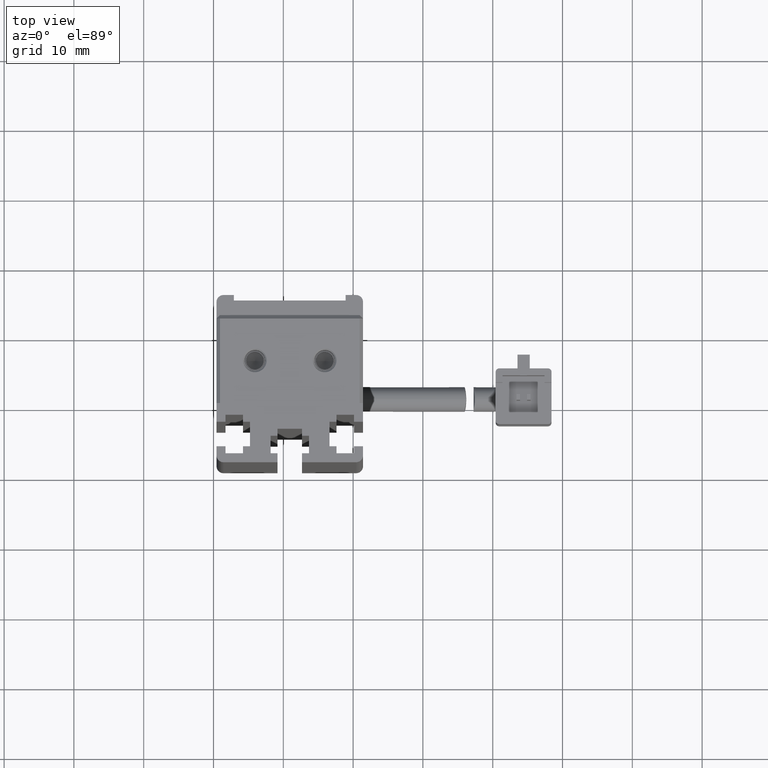
[diagram: clean part render]
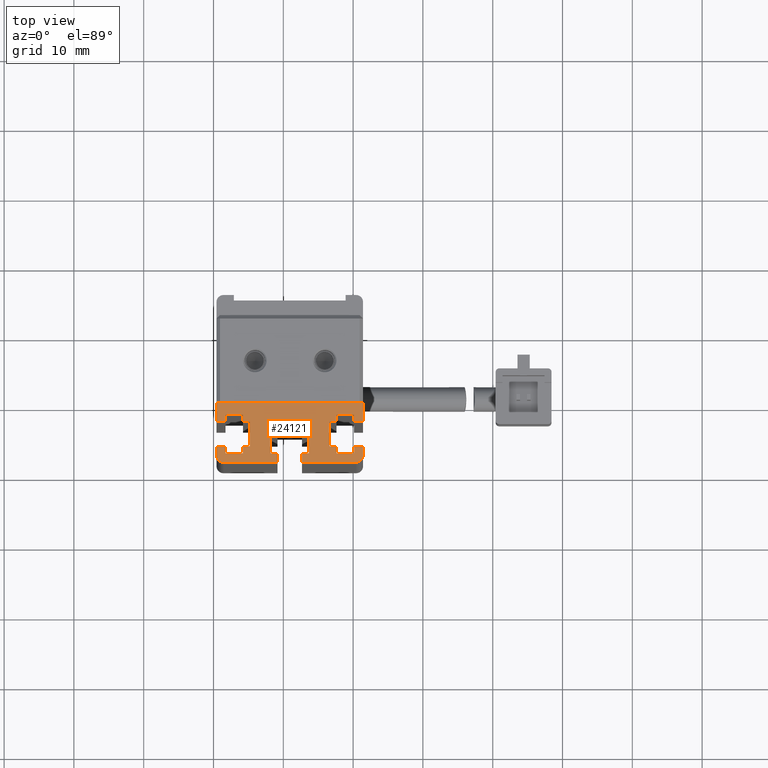
[diagram: same view with one face highlighted and labeled with its STEP entity id]
A machine part, top view. The second image highlights one B-rep face of the part: STEP entity #24121.
In plain terms, the highlighted planar face has unit normal (-0, 0, 1).
Its self-contained STEP definition (entity closure, byte-faithful):
#8 = VECTOR ( 'NONE', #27710, 1000.000000000000000 ) ;
#41 = VECTOR ( 'NONE', #16548, 1000.000000000000000 ) ;
#177 = VECTOR ( 'NONE', #17911, 1000.000000000000000 ) ;
#197 = DIRECTION ( 'NONE',  ( -3.469446951953608300E-015, -1.000000000000000000, -0.0000000000000000000 ) ) ;
#256 = ORIENTED_EDGE ( 'NONE', *, *, #383, .F. ) ;
#383 = EDGE_CURVE ( 'NONE', #12015, #27372, #4206, .T. ) ;
#414 = DIRECTION ( 'NONE',  ( 1.000000000000000000, 0.0000000000000000000, 0.0000000000000000000 ) ) ;
#568 = CARTESIAN_POINT ( 'NONE',  ( 35.22537974683543600, 16.79073232304837400, -70.00000000000000000 ) ) ;
#820 = EDGE_CURVE ( 'NONE', #19065, #17769, #24364, .T. ) ;
#836 = LINE ( 'NONE', #5452, #17569 ) ;
#989 = CARTESIAN_POINT ( 'NONE',  ( 38.17537974683542500, 14.79073232304837000, -70.00000000000000000 ) ) ;
#1068 = VERTEX_POINT ( 'NONE', #16191 ) ;
#1127 = ORIENTED_EDGE ( 'NONE', *, *, #19982, .T. ) ;
#1133 = VECTOR ( 'NONE', #12852, 1000.000000000000000 ) ;
#1151 = VERTEX_POINT ( 'NONE', #9265 ) ;
#1168 = VECTOR ( 'NONE', #9070, 1000.000000000000000 ) ;
#1192 = EDGE_CURVE ( 'NONE', #18522, #22071, #11869, .T. ) ;
#1219 = DIRECTION ( 'NONE',  ( -1.000000000000000000, -0.0000000000000000000, -0.0000000000000000000 ) ) ;
#1443 = DIRECTION ( 'NONE',  ( 1.000000000000000000, 0.0000000000000000000, -0.0000000000000000000 ) ) ;
#1846 = CIRCLE ( 'NONE', #8033, 1.000000000000000900 ) ;
#1994 = VERTEX_POINT ( 'NONE', #14873 ) ;
#2096 = EDGE_CURVE ( 'NONE', #31658, #12860, #4029, .T. ) ;
#2263 = LINE ( 'NONE', #27175, #3056 ) ;
#2485 = ORIENTED_EDGE ( 'NONE', *, *, #11287, .T. ) ;
#2505 = ORIENTED_EDGE ( 'NONE', *, *, #26873, .T. ) ;
#2664 = DIRECTION ( 'NONE',  ( 3.469446951953635100E-015, -1.000000000000000000, -0.0000000000000000000 ) ) ;
#2774 = CARTESIAN_POINT ( 'NONE',  ( 43.67537974683542500, 7.083797468354437600, -70.00000000000000000 ) ) ;
#2903 = CARTESIAN_POINT ( 'NONE',  ( 40.92537974683542500, 16.79073232304837000, -70.00000000000000000 ) ) ;
#2904 = ORIENTED_EDGE ( 'NONE', *, *, #25450, .T. ) ;
#3056 = VECTOR ( 'NONE', #14772, 1000.000000000000000 ) ;
#3300 = CARTESIAN_POINT ( 'NONE',  ( 40.92537974683542500, 14.79073232304837000, -70.00000000000000000 ) ) ;
#3314 = EDGE_CURVE ( 'NONE', #29016, #5624, #2263, .T. ) ;
#3324 = CARTESIAN_POINT ( 'NONE',  ( 46.62537974683541400, 16.79073232304837400, -70.00000000000000000 ) ) ;
#3415 = CARTESIAN_POINT ( 'NONE',  ( 40.92537974683542500, 12.29073232304837200, -70.00000000000000000 ) ) ;
#3601 = ORIENTED_EDGE ( 'NONE', *, *, #8509, .T. ) ;
#3622 = ORIENTED_EDGE ( 'NONE', *, *, #9431, .F. ) ;
#3689 = VECTOR ( 'NONE', #13351, 1000.000000000000000 ) ;
#3691 = ORIENTED_EDGE ( 'NONE', *, *, #15237, .T. ) ;
#3839 = ORIENTED_EDGE ( 'NONE', *, *, #25672, .F. ) ;
#3893 = CARTESIAN_POINT ( 'NONE',  ( 51.42537974683541800, 11.99073232304837000, -70.00000000000000000 ) ) ;
#3908 = LINE ( 'NONE', #16433, #1168 ) ;
#4029 = LINE ( 'NONE', #29767, #11816 ) ;
#4206 = LINE ( 'NONE', #16713, #18201 ) ;
#4295 = ORIENTED_EDGE ( 'NONE', *, *, #6311, .F. ) ;
#4385 = EDGE_CURVE ( 'NONE', #31087, #6876, #27409, .T. ) ;
#4418 = ORIENTED_EDGE ( 'NONE', *, *, #16454, .T. ) ;
#4774 = LINE ( 'NONE', #3300, #28842 ) ;
#4777 = VECTOR ( 'NONE', #8216, 1000.000000000000000 ) ;
#4827 = EDGE_CURVE ( 'NONE', #23783, #1068, #9073, .T. ) ;
#4888 = LINE ( 'NONE', #22933, #12277 ) ;
#5014 = EDGE_CURVE ( 'NONE', #21637, #18522, #29672, .T. ) ;
#5164 = ORIENTED_EDGE ( 'NONE', *, *, #29186, .T. ) ;
#5228 = ORIENTED_EDGE ( 'NONE', *, *, #4827, .T. ) ;
#5251 = VERTEX_POINT ( 'NONE', #10867 ) ;
#5307 = CARTESIAN_POINT ( 'NONE',  ( 51.42537974683542500, 19.49073232304837000, -70.00000000000000000 ) ) ;
#5332 = EDGE_CURVE ( 'NONE', #17769, #25116, #11770, .T. ) ;
#5365 = CARTESIAN_POINT ( 'NONE',  ( 40.92537974683542500, 16.79073232304837400, -70.00000000000000000 ) ) ;
#5452 = CARTESIAN_POINT ( 'NONE',  ( 30.42537974683542100, 7.083797468354437600, -70.00000000000000000 ) ) ;
#5624 = VERTEX_POINT ( 'NONE', #9560 ) ;
#5768 = VECTOR ( 'NONE', #1219, 1000.000000000000000 ) ;
#6011 = CARTESIAN_POINT ( 'NONE',  ( 47.62537974683541400, 12.29073232304837200, -70.00000000000000000 ) ) ;
#6038 = EDGE_CURVE ( 'NONE', #7157, #31087, #3908, .T. ) ;
#6147 = ORIENTED_EDGE ( 'NONE', *, *, #31239, .T. ) ;
#6191 = LINE ( 'NONE', #15365, #22497 ) ;
#6279 = DIRECTION ( 'NONE',  ( 1.000000000000000000, -1.734723475976807500E-015, -0.0000000000000000000 ) ) ;
#6311 = EDGE_CURVE ( 'NONE', #11336, #12860, #15149, .T. ) ;
#6419 = CARTESIAN_POINT ( 'NONE',  ( 34.22537974683543600, 16.79073232304837400, -70.00000000000000000 ) ) ;
#6457 = CARTESIAN_POINT ( 'NONE',  ( 46.62537974683541400, 13.29073232304837200, -70.00000000000000000 ) ) ;
#6535 = CARTESIAN_POINT ( 'NONE',  ( 40.92537974683542500, 17.79073232304837000, -70.00000000000000000 ) ) ;
#6630 = ORIENTED_EDGE ( 'NONE', *, *, #4385, .T. ) ;
#6780 = ORIENTED_EDGE ( 'NONE', *, *, #18004, .T. ) ;
#6816 = LINE ( 'NONE', #28294, #8778 ) ;
#6876 = VERTEX_POINT ( 'NONE', #13083 ) ;
#6909 = VERTEX_POINT ( 'NONE', #15561 ) ;
#7157 = VERTEX_POINT ( 'NONE', #26745 ) ;
#7207 = CARTESIAN_POINT ( 'NONE',  ( 39.17537974683542500, 15.79073232304837000, -70.00000000000000000 ) ) ;
#7244 = VECTOR ( 'NONE', #9306, 1000.000000000000000 ) ;
#7276 = CARTESIAN_POINT ( 'NONE',  ( 42.67537974683542500, 7.083797468354437600, -70.00000000000000000 ) ) ;
#7360 = DIRECTION ( 'NONE',  ( -1.000000000000000000, 0.0000000000000000000, 0.0000000000000000000 ) ) ;
#7404 = CARTESIAN_POINT ( 'NONE',  ( 39.17537974683542500, 7.083797468354437600, -70.00000000000000000 ) ) ;
#7640 = VERTEX_POINT ( 'NONE', #6457 ) ;
#7648 = CARTESIAN_POINT ( 'NONE',  ( 31.72537974683542600, 12.29073232304837200, -70.00000000000000000 ) ) ;
#7922 = VERTEX_POINT ( 'NONE', #14799 ) ;
#7960 = VERTEX_POINT ( 'NONE', #17924 ) ;
#7996 = CARTESIAN_POINT ( 'NONE',  ( 34.22537974683547200, 7.083797468354414500, -70.00000000000000000 ) ) ;
#8012 = DIRECTION ( 'NONE',  ( 0.0000000000000000000, 1.000000000000000000, -0.0000000000000000000 ) ) ;
#8033 = AXIS2_PLACEMENT_3D ( 'NONE', #22149, #12113, #24792 ) ;
#8120 = ORIENTED_EDGE ( 'NONE', *, *, #13348, .F. ) ;
#8205 = DIRECTION ( 'NONE',  ( -1.000000000000000000, 2.602085213965210200E-015, -0.0000000000000000000 ) ) ;
#8216 = DIRECTION ( 'NONE',  ( -1.000000000000000000, -0.0000000000000000000, -0.0000000000000000000 ) ) ;
#8270 = ORIENTED_EDGE ( 'NONE', *, *, #25284, .F. ) ;
#8276 = LINE ( 'NONE', #7276, #23782 ) ;
#8335 = VERTEX_POINT ( 'NONE', #21780 ) ;
#8451 = VERTEX_POINT ( 'NONE', #17583 ) ;
#8463 = LINE ( 'NONE', #8626, #17400 ) ;
#8484 = ORIENTED_EDGE ( 'NONE', *, *, #16939, .F. ) ;
#8509 = EDGE_CURVE ( 'NONE', #1068, #11716, #14094, .T. ) ;
#8626 = CARTESIAN_POINT ( 'NONE',  ( 50.12537974683544900, 7.083797468354469600, -70.00000000000000000 ) ) ;
#8632 = DIRECTION ( 'NONE',  ( -0.0000000000000000000, -1.000000000000000000, 0.0000000000000000000 ) ) ;
#8778 = VECTOR ( 'NONE', #8632, 1000.000000000000000 ) ;
#8840 = CARTESIAN_POINT ( 'NONE',  ( 40.92537974683541100, 13.29073232304835500, -70.00000000000000000 ) ) ;
#8976 = CARTESIAN_POINT ( 'NONE',  ( 31.72537974683544000, 7.083797468354405600, -70.00000000000000000 ) ) ;
#9051 = DIRECTION ( 'NONE',  ( 0.0000000000000000000, 1.000000000000000000, -0.0000000000000000000 ) ) ;
#9070 = DIRECTION ( 'NONE',  ( -0.0000000000000000000, -1.000000000000000000, -0.0000000000000000000 ) ) ;
#9073 = LINE ( 'NONE', #10318, #16822 ) ;
#9165 = VERTEX_POINT ( 'NONE', #15573 ) ;
#9232 = ORIENTED_EDGE ( 'NONE', *, *, #820, .T. ) ;
#9265 = CARTESIAN_POINT ( 'NONE',  ( 50.12537974683542100, 17.79073232304837400, -70.00000000000000000 ) ) ;
#9306 = DIRECTION ( 'NONE',  ( -3.469446951953608300E-015, 1.000000000000000000, -0.0000000000000000000 ) ) ;
#9431 = EDGE_CURVE ( 'NONE', #10289, #6876, #1846, .T. ) ;
#9514 = CARTESIAN_POINT ( 'NONE',  ( 31.42537974683542900, 10.99073232304837000, -70.00000000000000000 ) ) ;
#9560 = CARTESIAN_POINT ( 'NONE',  ( 30.42537974683542100, 19.49073232304837000, -70.00000000000000000 ) ) ;
#9563 = CARTESIAN_POINT ( 'NONE',  ( 42.67537974683542500, 10.99073232304837000, -70.00000000000000000 ) ) ;
#9998 = CARTESIAN_POINT ( 'NONE',  ( 50.12537974683542800, 13.29073232304837200, -70.00000000000000000 ) ) ;
#10163 = EDGE_CURVE ( 'NONE', #11336, #8451, #30520, .T. ) ;
#10263 = LINE ( 'NONE', #3415, #4777 ) ;
#10289 = VERTEX_POINT ( 'NONE', #3893 ) ;
#10318 = CARTESIAN_POINT ( 'NONE',  ( 40.92537974683542500, 14.79073232304837000, -70.00000000000000000 ) ) ;
#10442 = VERTEX_POINT ( 'NONE', #11625 ) ;
#10538 = VECTOR ( 'NONE', #19508, 1000.000000000000000 ) ;
#10822 = ORIENTED_EDGE ( 'NONE', *, *, #22322, .T. ) ;
#10867 = CARTESIAN_POINT ( 'NONE',  ( 50.12537974683542800, 16.79073232304837000, -70.00000000000000000 ) ) ;
#10969 = LINE ( 'NONE', #17539, #17927 ) ;
#10985 = VECTOR ( 'NONE', #6279, 1000.000000000000000 ) ;
#11082 = VERTEX_POINT ( 'NONE', #21832 ) ;
#11163 = CARTESIAN_POINT ( 'NONE',  ( 40.92537974683542500, 12.29073232304837200, -70.00000000000000000 ) ) ;
#11237 = VECTOR ( 'NONE', #197, 1000.000000000000000 ) ;
#11287 = EDGE_CURVE ( 'NONE', #8335, #7960, #10969, .T. ) ;
#11336 = VERTEX_POINT ( 'NONE', #18159 ) ;
#11372 = VERTEX_POINT ( 'NONE', #30138 ) ;
#11617 = CIRCLE ( 'NONE', #31947, 1.000000000000000900 ) ;
#11625 = CARTESIAN_POINT ( 'NONE',  ( 30.42537974683542500, 11.99073232304837000, -70.00000000000000000 ) ) ;
#11716 = VERTEX_POINT ( 'NONE', #7207 ) ;
#11770 = LINE ( 'NONE', #20765, #10985 ) ;
#11816 = VECTOR ( 'NONE', #22342, 1000.000000000000000 ) ;
#11869 = LINE ( 'NONE', #8976, #7244 ) ;
#12015 = VERTEX_POINT ( 'NONE', #25930 ) ;
#12102 = DIRECTION ( 'NONE',  ( 1.000000000000000000, 0.0000000000000000000, 0.0000000000000000000 ) ) ;
#12113 = DIRECTION ( 'NONE',  ( -0.0000000000000000000, -0.0000000000000000000, -1.000000000000000000 ) ) ;
#12277 = VECTOR ( 'NONE', #30906, 1000.000000000000000 ) ;
#12475 = DIRECTION ( 'NONE',  ( 0.0000000000000000000, 1.000000000000000000, -0.0000000000000000000 ) ) ;
#12498 = LINE ( 'NONE', #23801, #41 ) ;
#12600 = CARTESIAN_POINT ( 'NONE',  ( 34.22537974683541500, 7.083797468354461600, -70.00000000000000000 ) ) ;
#12834 = CARTESIAN_POINT ( 'NONE',  ( 40.92537974683542500, 7.083797468354437600, -70.00000000000000000 ) ) ;
#12852 = DIRECTION ( 'NONE',  ( -0.0000000000000000000, -1.000000000000000000, -0.0000000000000000000 ) ) ;
#12860 = VERTEX_POINT ( 'NONE', #25136 ) ;
#13043 = CARTESIAN_POINT ( 'NONE',  ( 40.92537974683542500, 12.29073232304837200, -70.00000000000000000 ) ) ;
#13070 = FACE_OUTER_BOUND ( 'NONE', #22729, .T. ) ;
#13083 = CARTESIAN_POINT ( 'NONE',  ( 50.42537974683541800, 10.99073232304837000, -70.00000000000000000 ) ) ;
#13181 = CARTESIAN_POINT ( 'NONE',  ( 40.92537974683543900, 13.29073232304835500, -70.00000000000000000 ) ) ;
#13331 = LINE ( 'NONE', #6535, #13700 ) ;
#13348 = EDGE_CURVE ( 'NONE', #20966, #5624, #836, .T. ) ;
#13351 = DIRECTION ( 'NONE',  ( -1.000000000000000000, -0.0000000000000000000, -0.0000000000000000000 ) ) ;
#13431 = ORIENTED_EDGE ( 'NONE', *, *, #2096, .T. ) ;
#13575 = ORIENTED_EDGE ( 'NONE', *, *, #19759, .F. ) ;
#13700 = VECTOR ( 'NONE', #12102, 1000.000000000000000 ) ;
#13780 = VERTEX_POINT ( 'NONE', #24408 ) ;
#13931 = LINE ( 'NONE', #20893, #25943 ) ;
#14094 = LINE ( 'NONE', #7404, #19501 ) ;
#14271 = LINE ( 'NONE', #2774, #30635 ) ;
#14284 = CARTESIAN_POINT ( 'NONE',  ( 50.12537974683542800, 12.29073232304837200, -70.00000000000000000 ) ) ;
#14460 = VERTEX_POINT ( 'NONE', #9998 ) ;
#14490 = DIRECTION ( 'NONE',  ( -0.0000000000000000000, -0.0000000000000000000, -1.000000000000000000 ) ) ;
#14506 = ORIENTED_EDGE ( 'NONE', *, *, #25142, .T. ) ;
#14530 = EDGE_CURVE ( 'NONE', #7640, #27372, #6191, .T. ) ;
#14632 = CARTESIAN_POINT ( 'NONE',  ( 34.22537974683542900, 12.29073232304837200, -70.00000000000000000 ) ) ;
#14744 = DIRECTION ( 'NONE',  ( 1.000000000000000000, 0.0000000000000000000, 0.0000000000000000000 ) ) ;
#14772 = DIRECTION ( 'NONE',  ( -1.000000000000000000, -0.0000000000000000000, -0.0000000000000000000 ) ) ;
#14799 = CARTESIAN_POINT ( 'NONE',  ( 51.42537974683541800, 16.79073232304837000, -70.00000000000000000 ) ) ;
#14873 = CARTESIAN_POINT ( 'NONE',  ( 30.42537974683542100, 13.29073232304837200, -70.00000000000000000 ) ) ;
#14970 = ORIENTED_EDGE ( 'NONE', *, *, #1192, .T. ) ;
#15065 = DIRECTION ( 'NONE',  ( 1.000000000000000000, 0.0000000000000000000, -0.0000000000000000000 ) ) ;
#15075 = DIRECTION ( 'NONE',  ( 0.0000000000000000000, 1.000000000000000000, -0.0000000000000000000 ) ) ;
#15138 = LINE ( 'NONE', #29635, #10538 ) ;
#15149 = LINE ( 'NONE', #30022, #1133 ) ;
#15237 = EDGE_CURVE ( 'NONE', #7960, #19065, #13331, .T. ) ;
#15365 = CARTESIAN_POINT ( 'NONE',  ( 46.62537974683541400, 7.083797468354437600, -70.00000000000000000 ) ) ;
#15561 = CARTESIAN_POINT ( 'NONE',  ( 42.67537974683542500, 14.79073232304837000, -70.00000000000000000 ) ) ;
#15563 = VERTEX_POINT ( 'NONE', #6011 ) ;
#15573 = CARTESIAN_POINT ( 'NONE',  ( 35.22537974683543600, 13.29073232304837000, -70.00000000000000000 ) ) ;
#15945 = CARTESIAN_POINT ( 'NONE',  ( 47.62537974683541400, 17.79073232304837400, -70.00000000000000000 ) ) ;
#16037 = VECTOR ( 'NONE', #8205, 1000.000000000000000 ) ;
#16191 = CARTESIAN_POINT ( 'NONE',  ( 39.17537974683542500, 14.79073232304837000, -70.00000000000000000 ) ) ;
#16218 = EDGE_CURVE ( 'NONE', #17578, #1151, #26450, .T. ) ;
#16315 = CARTESIAN_POINT ( 'NONE',  ( 40.92537974683542500, 12.29073232304837200, -70.00000000000000000 ) ) ;
#16321 = ORIENTED_EDGE ( 'NONE', *, *, #22234, .F. ) ;
#16433 = CARTESIAN_POINT ( 'NONE',  ( 42.67537974683542500, 7.083797468354437600, -70.00000000000000000 ) ) ;
#16454 = EDGE_CURVE ( 'NONE', #10289, #11372, #15138, .T. ) ;
#16548 = DIRECTION ( 'NONE',  ( 0.0000000000000000000, 1.000000000000000000, -0.0000000000000000000 ) ) ;
#16560 = ORIENTED_EDGE ( 'NONE', *, *, #3314, .T. ) ;
#16713 = CARTESIAN_POINT ( 'NONE',  ( 40.92537974683543900, 16.79073232304838100, -70.00000000000000000 ) ) ;
#16822 = VECTOR ( 'NONE', #15065, 1000.000000000000000 ) ;
#16939 = EDGE_CURVE ( 'NONE', #31658, #10442, #11617, .T. ) ;
#17116 = EDGE_CURVE ( 'NONE', #11082, #25244, #14271, .T. ) ;
#17278 = LINE ( 'NONE', #22032, #18009 ) ;
#17399 = DIRECTION ( 'NONE',  ( -1.000000000000000000, -0.0000000000000000000, -0.0000000000000000000 ) ) ;
#17400 = VECTOR ( 'NONE', #26079, 1000.000000000000000 ) ;
#17439 = CARTESIAN_POINT ( 'NONE',  ( 31.72537974683542600, 13.29073232304837200, -70.00000000000000000 ) ) ;
#17539 = CARTESIAN_POINT ( 'NONE',  ( 31.72537974683539000, 7.083797468354469600, -70.00000000000000000 ) ) ;
#17569 = VECTOR ( 'NONE', #20376, 1000.000000000000000 ) ;
#17578 = VERTEX_POINT ( 'NONE', #15945 ) ;
#17583 = CARTESIAN_POINT ( 'NONE',  ( 38.17537974683542500, 12.29073232304837200, -70.00000000000000000 ) ) ;
#17672 = CARTESIAN_POINT ( 'NONE',  ( 40.92537974683542500, 15.79073232304837000, -70.00000000000000000 ) ) ;
#17697 = AXIS2_PLACEMENT_3D ( 'NONE', #12834, #22569, #414 ) ;
#17769 = VERTEX_POINT ( 'NONE', #6419 ) ;
#17783 = VECTOR ( 'NONE', #2664, 1000.000000000000000 ) ;
#17911 = DIRECTION ( 'NONE',  ( 1.000000000000000000, 0.0000000000000000000, 0.0000000000000000000 ) ) ;
#17924 = CARTESIAN_POINT ( 'NONE',  ( 31.72537974683542600, 17.79073232304837000, -70.00000000000000000 ) ) ;
#17927 = VECTOR ( 'NONE', #19996, 1000.000000000000000 ) ;
#18004 = EDGE_CURVE ( 'NONE', #23292, #15563, #10263, .T. ) ;
#18009 = VECTOR ( 'NONE', #32104, 1000.000000000000000 ) ;
#18144 = VECTOR ( 'NONE', #1443, 1000.000000000000000 ) ;
#18159 = CARTESIAN_POINT ( 'NONE',  ( 39.17537974683542500, 12.29073232304837200, -70.00000000000000000 ) ) ;
#18201 = VECTOR ( 'NONE', #21330, 1000.000000000000000 ) ;
#18404 = LINE ( 'NONE', #29668, #19954 ) ;
#18464 = ORIENTED_EDGE ( 'NONE', *, *, #17116, .T. ) ;
#18522 = VERTEX_POINT ( 'NONE', #7648 ) ;
#18583 = DIRECTION ( 'NONE',  ( -1.000000000000000000, -0.0000000000000000000, -0.0000000000000000000 ) ) ;
#18640 = VECTOR ( 'NONE', #28445, 1000.000000000000000 ) ;
#18884 = VECTOR ( 'NONE', #20188, 1000.000000000000000 ) ;
#19065 = VERTEX_POINT ( 'NONE', #24860 ) ;
#19501 = VECTOR ( 'NONE', #15075, 1000.000000000000000 ) ;
#19508 = DIRECTION ( 'NONE',  ( 1.334402673828310700E-015, 1.000000000000000000, -0.0000000000000000000 ) ) ;
#19657 = ORIENTED_EDGE ( 'NONE', *, *, #6038, .T. ) ;
#19744 = ORIENTED_EDGE ( 'NONE', *, *, #31465, .F. ) ;
#19759 = EDGE_CURVE ( 'NONE', #7157, #25244, #30197, .T. ) ;
#19844 = ORIENTED_EDGE ( 'NONE', *, *, #16218, .T. ) ;
#19894 = CARTESIAN_POINT ( 'NONE',  ( 31.42537974683542900, 11.99073232304837000, -70.00000000000000000 ) ) ;
#19954 = VECTOR ( 'NONE', #17399, 1000.000000000000000 ) ;
#19982 = EDGE_CURVE ( 'NONE', #20966, #8335, #20027, .T. ) ;
#19996 = DIRECTION ( 'NONE',  ( 3.469446951953635100E-015, 1.000000000000000000, -0.0000000000000000000 ) ) ;
#20027 = LINE ( 'NONE', #5365, #18884 ) ;
#20188 = DIRECTION ( 'NONE',  ( 1.000000000000000000, 0.0000000000000000000, 0.0000000000000000000 ) ) ;
#20376 = DIRECTION ( 'NONE',  ( 0.0000000000000000000, 1.000000000000000000, -0.0000000000000000000 ) ) ;
#20470 = LINE ( 'NONE', #12600, #11237 ) ;
#20551 = ORIENTED_EDGE ( 'NONE', *, *, #30708, .F. ) ;
#20564 = ORIENTED_EDGE ( 'NONE', *, *, #20752, .T. ) ;
#20752 = EDGE_CURVE ( 'NONE', #9165, #13780, #32025, .T. ) ;
#20765 = CARTESIAN_POINT ( 'NONE',  ( 40.92537974683543900, 16.79073232304836000, -70.00000000000000000 ) ) ;
#20893 = CARTESIAN_POINT ( 'NONE',  ( 50.12537974683540700, 7.083797468354405600, -70.00000000000000000 ) ) ;
#20966 = VERTEX_POINT ( 'NONE', #28380 ) ;
#21276 = LINE ( 'NONE', #17672, #21663 ) ;
#21330 = DIRECTION ( 'NONE',  ( -1.000000000000000000, 1.734723475976807500E-015, -0.0000000000000000000 ) ) ;
#21365 = CARTESIAN_POINT ( 'NONE',  ( 43.67537974683542500, 12.29073232304837200, -70.00000000000000000 ) ) ;
#21536 = ORIENTED_EDGE ( 'NONE', *, *, #10163, .T. ) ;
#21637 = VERTEX_POINT ( 'NONE', #14632 ) ;
#21663 = VECTOR ( 'NONE', #14744, 1000.000000000000000 ) ;
#21670 = ORIENTED_EDGE ( 'NONE', *, *, #25372, .F. ) ;
#21780 = CARTESIAN_POINT ( 'NONE',  ( 31.72537974683542600, 16.79073232304837400, -70.00000000000000000 ) ) ;
#21832 = CARTESIAN_POINT ( 'NONE',  ( 43.67537974683542500, 14.79073232304837000, -70.00000000000000000 ) ) ;
#22032 = CARTESIAN_POINT ( 'NONE',  ( 40.92537974683542500, 13.29073232304837200, -70.00000000000000000 ) ) ;
#22071 = VERTEX_POINT ( 'NONE', #17439 ) ;
#22149 = CARTESIAN_POINT ( 'NONE',  ( 50.42537974683541800, 11.99073232304837000, -70.00000000000000000 ) ) ;
#22234 = EDGE_CURVE ( 'NONE', #11082, #6909, #4774, .T. ) ;
#22322 = EDGE_CURVE ( 'NONE', #7922, #29016, #27698, .T. ) ;
#22342 = DIRECTION ( 'NONE',  ( 1.000000000000000000, 0.0000000000000000000, 0.0000000000000000000 ) ) ;
#22464 = CARTESIAN_POINT ( 'NONE',  ( 40.92537974683542500, 10.99073232304837000, -70.00000000000000000 ) ) ;
#22497 = VECTOR ( 'NONE', #8012, 1000.000000000000000 ) ;
#22569 = DIRECTION ( 'NONE',  ( -0.0000000000000000000, 0.0000000000000000000, 1.000000000000000000 ) ) ;
#22729 = EDGE_LOOP ( 'NONE', ( #31753, #19744, #10822, #16560, #8120, #1127, #2485, #3691, #9232, #26931, #14506, #20564, #2505, #29469, #14970, #2904, #27534, #8484, #13431, #4295, #21536, #5164, #5228, #3601, #6147, #3839, #16321, #18464, #13575, #19657, #6630, #3622, #4418, #21670, #29475, #6780, #20551, #8270, #28333, #256, #27699, #19844 ) ) ;
#22933 = CARTESIAN_POINT ( 'NONE',  ( 47.62537974683537800, 7.083797468354414500, -70.00000000000000000 ) ) ;
#22994 = VERTEX_POINT ( 'NONE', #28416 ) ;
#23029 = VECTOR ( 'NONE', #23384, 1000.000000000000000 ) ;
#23142 = DIRECTION ( 'NONE',  ( -1.334402673828310700E-015, 1.000000000000000000, -0.0000000000000000000 ) ) ;
#23292 = VERTEX_POINT ( 'NONE', #14284 ) ;
#23384 = DIRECTION ( 'NONE',  ( -1.000000000000000000, -0.0000000000000000000, -0.0000000000000000000 ) ) ;
#23527 = EDGE_CURVE ( 'NONE', #10442, #1994, #25589, .T. ) ;
#23735 = EDGE_CURVE ( 'NONE', #1151, #5251, #8463, .T. ) ;
#23782 = VECTOR ( 'NONE', #12475, 1000.000000000000000 ) ;
#23783 = VERTEX_POINT ( 'NONE', #989 ) ;
#23801 = CARTESIAN_POINT ( 'NONE',  ( 38.17537974683542500, 7.083797468354437600, -70.00000000000000000 ) ) ;
#23852 = DIRECTION ( 'NONE',  ( 3.469446951953608300E-015, 1.000000000000000000, -0.0000000000000000000 ) ) ;
#24121 = ADVANCED_FACE ( 'NONE', ( #13070 ), #27397, .T. ) ;
#24273 = EDGE_CURVE ( 'NONE', #23292, #14460, #13931, .T. ) ;
#24364 = LINE ( 'NONE', #7996, #17783 ) ;
#24408 = CARTESIAN_POINT ( 'NONE',  ( 34.22537974683543600, 13.29073232304837200, -70.00000000000000000 ) ) ;
#24690 = CARTESIAN_POINT ( 'NONE',  ( 47.62537974683541400, 13.29073232304837200, -70.00000000000000000 ) ) ;
#24792 = DIRECTION ( 'NONE',  ( -1.000000000000000000, 0.0000000000000000000, 0.0000000000000000000 ) ) ;
#24860 = CARTESIAN_POINT ( 'NONE',  ( 34.22537974683542900, 17.79073232304837000, -70.00000000000000000 ) ) ;
#25024 = DIRECTION ( 'NONE',  ( -0.0000000000000000000, -1.000000000000000000, 0.0000000000000000000 ) ) ;
#25116 = VERTEX_POINT ( 'NONE', #568 ) ;
#25123 = EDGE_CURVE ( 'NONE', #17578, #12015, #4888, .T. ) ;
#25136 = CARTESIAN_POINT ( 'NONE',  ( 39.17537974683542500, 10.99073232304837000, -70.00000000000000000 ) ) ;
#25142 = EDGE_CURVE ( 'NONE', #25116, #9165, #6816, .T. ) ;
#25244 = VERTEX_POINT ( 'NONE', #21365 ) ;
#25284 = EDGE_CURVE ( 'NONE', #7640, #27755, #30913, .T. ) ;
#25372 = EDGE_CURVE ( 'NONE', #14460, #11372, #17278, .T. ) ;
#25450 = EDGE_CURVE ( 'NONE', #22071, #1994, #18404, .T. ) ;
#25589 = LINE ( 'NONE', #28067, #30669 ) ;
#25672 = EDGE_CURVE ( 'NONE', #6909, #22994, #8276, .T. ) ;
#25840 = CARTESIAN_POINT ( 'NONE',  ( 40.92537974683542500, 17.79073232304837400, -70.00000000000000000 ) ) ;
#25930 = CARTESIAN_POINT ( 'NONE',  ( 47.62537974683541400, 16.79073232304837000, -70.00000000000000000 ) ) ;
#25943 = VECTOR ( 'NONE', #23852, 1000.000000000000000 ) ;
#26079 = DIRECTION ( 'NONE',  ( 3.469446951953611000E-015, -1.000000000000000000, -0.0000000000000000000 ) ) ;
#26101 = VECTOR ( 'NONE', #9051, 1000.000000000000000 ) ;
#26199 = DIRECTION ( 'NONE',  ( 1.000000000000000000, 2.602085213965210200E-015, -0.0000000000000000000 ) ) ;
#26305 = CARTESIAN_POINT ( 'NONE',  ( 51.42537974683541800, 7.083797468354437600, -70.00000000000000000 ) ) ;
#26450 = LINE ( 'NONE', #25840, #18640 ) ;
#26745 = CARTESIAN_POINT ( 'NONE',  ( 42.67537974683542500, 12.29073232304837200, -70.00000000000000000 ) ) ;
#26873 = EDGE_CURVE ( 'NONE', #13780, #21637, #20470, .T. ) ;
#26931 = ORIENTED_EDGE ( 'NONE', *, *, #5332, .T. ) ;
#27175 = CARTESIAN_POINT ( 'NONE',  ( 40.92537974683542500, 19.49073232304837000, -70.00000000000000000 ) ) ;
#27372 = VERTEX_POINT ( 'NONE', #3324 ) ;
#27397 = PLANE ( 'NONE',  #17697 ) ;
#27409 = LINE ( 'NONE', #22464, #177 ) ;
#27534 = ORIENTED_EDGE ( 'NONE', *, *, #23527, .F. ) ;
#27647 = LINE ( 'NONE', #30203, #8 ) ;
#27698 = LINE ( 'NONE', #26305, #26101 ) ;
#27699 = ORIENTED_EDGE ( 'NONE', *, *, #25123, .F. ) ;
#27710 = DIRECTION ( 'NONE',  ( 3.469446951953608300E-015, -1.000000000000000000, -0.0000000000000000000 ) ) ;
#27755 = VERTEX_POINT ( 'NONE', #24690 ) ;
#28067 = CARTESIAN_POINT ( 'NONE',  ( 30.42537974683543200, 7.083797468354424300, -70.00000000000000000 ) ) ;
#28294 = CARTESIAN_POINT ( 'NONE',  ( 35.22537974683543600, 7.083797468354437600, -70.00000000000000000 ) ) ;
#28333 = ORIENTED_EDGE ( 'NONE', *, *, #14530, .T. ) ;
#28380 = CARTESIAN_POINT ( 'NONE',  ( 30.42537974683542100, 16.79073232304837400, -70.00000000000000000 ) ) ;
#28416 = CARTESIAN_POINT ( 'NONE',  ( 42.67537974683542500, 15.79073232304837000, -70.00000000000000000 ) ) ;
#28445 = DIRECTION ( 'NONE',  ( 1.000000000000000000, 0.0000000000000000000, 0.0000000000000000000 ) ) ;
#28682 = LINE ( 'NONE', #2903, #5768 ) ;
#28842 = VECTOR ( 'NONE', #18583, 1000.000000000000000 ) ;
#29016 = VERTEX_POINT ( 'NONE', #5307 ) ;
#29186 = EDGE_CURVE ( 'NONE', #8451, #23783, #12498, .T. ) ;
#29469 = ORIENTED_EDGE ( 'NONE', *, *, #5014, .T. ) ;
#29475 = ORIENTED_EDGE ( 'NONE', *, *, #24273, .F. ) ;
#29635 = CARTESIAN_POINT ( 'NONE',  ( 51.42537974683541100, 7.083797468354424300, -70.00000000000000000 ) ) ;
#29668 = CARTESIAN_POINT ( 'NONE',  ( 40.92537974683542500, 13.29073232304837200, -70.00000000000000000 ) ) ;
#29672 = LINE ( 'NONE', #11163, #23029 ) ;
#29767 = CARTESIAN_POINT ( 'NONE',  ( 40.92537974683542500, 10.99073232304837000, -70.00000000000000000 ) ) ;
#30022 = CARTESIAN_POINT ( 'NONE',  ( 39.17537974683542500, 7.083797468354437600, -70.00000000000000000 ) ) ;
#30138 = CARTESIAN_POINT ( 'NONE',  ( 51.42537974683541800, 13.29073232304837200, -70.00000000000000000 ) ) ;
#30197 = LINE ( 'NONE', #16315, #18144 ) ;
#30203 = CARTESIAN_POINT ( 'NONE',  ( 47.62537974683543500, 7.083797468354461600, -70.00000000000000000 ) ) ;
#30511 = VECTOR ( 'NONE', #26199, 1000.000000000000000 ) ;
#30520 = LINE ( 'NONE', #13043, #3689 ) ;
#30635 = VECTOR ( 'NONE', #25024, 1000.000000000000000 ) ;
#30669 = VECTOR ( 'NONE', #23142, 1000.000000000000000 ) ;
#30708 = EDGE_CURVE ( 'NONE', #27755, #15563, #27647, .T. ) ;
#30906 = DIRECTION ( 'NONE',  ( -3.469446951953611000E-015, -1.000000000000000000, -0.0000000000000000000 ) ) ;
#30913 = LINE ( 'NONE', #8840, #30511 ) ;
#31087 = VERTEX_POINT ( 'NONE', #9563 ) ;
#31239 = EDGE_CURVE ( 'NONE', #11716, #22994, #21276, .T. ) ;
#31465 = EDGE_CURVE ( 'NONE', #7922, #5251, #28682, .T. ) ;
#31658 = VERTEX_POINT ( 'NONE', #9514 ) ;
#31753 = ORIENTED_EDGE ( 'NONE', *, *, #23735, .T. ) ;
#31947 = AXIS2_PLACEMENT_3D ( 'NONE', #19894, #14490, #7360 ) ;
#32025 = LINE ( 'NONE', #13181, #16037 ) ;
#32104 = DIRECTION ( 'NONE',  ( 1.000000000000000000, 0.0000000000000000000, -0.0000000000000000000 ) ) ;